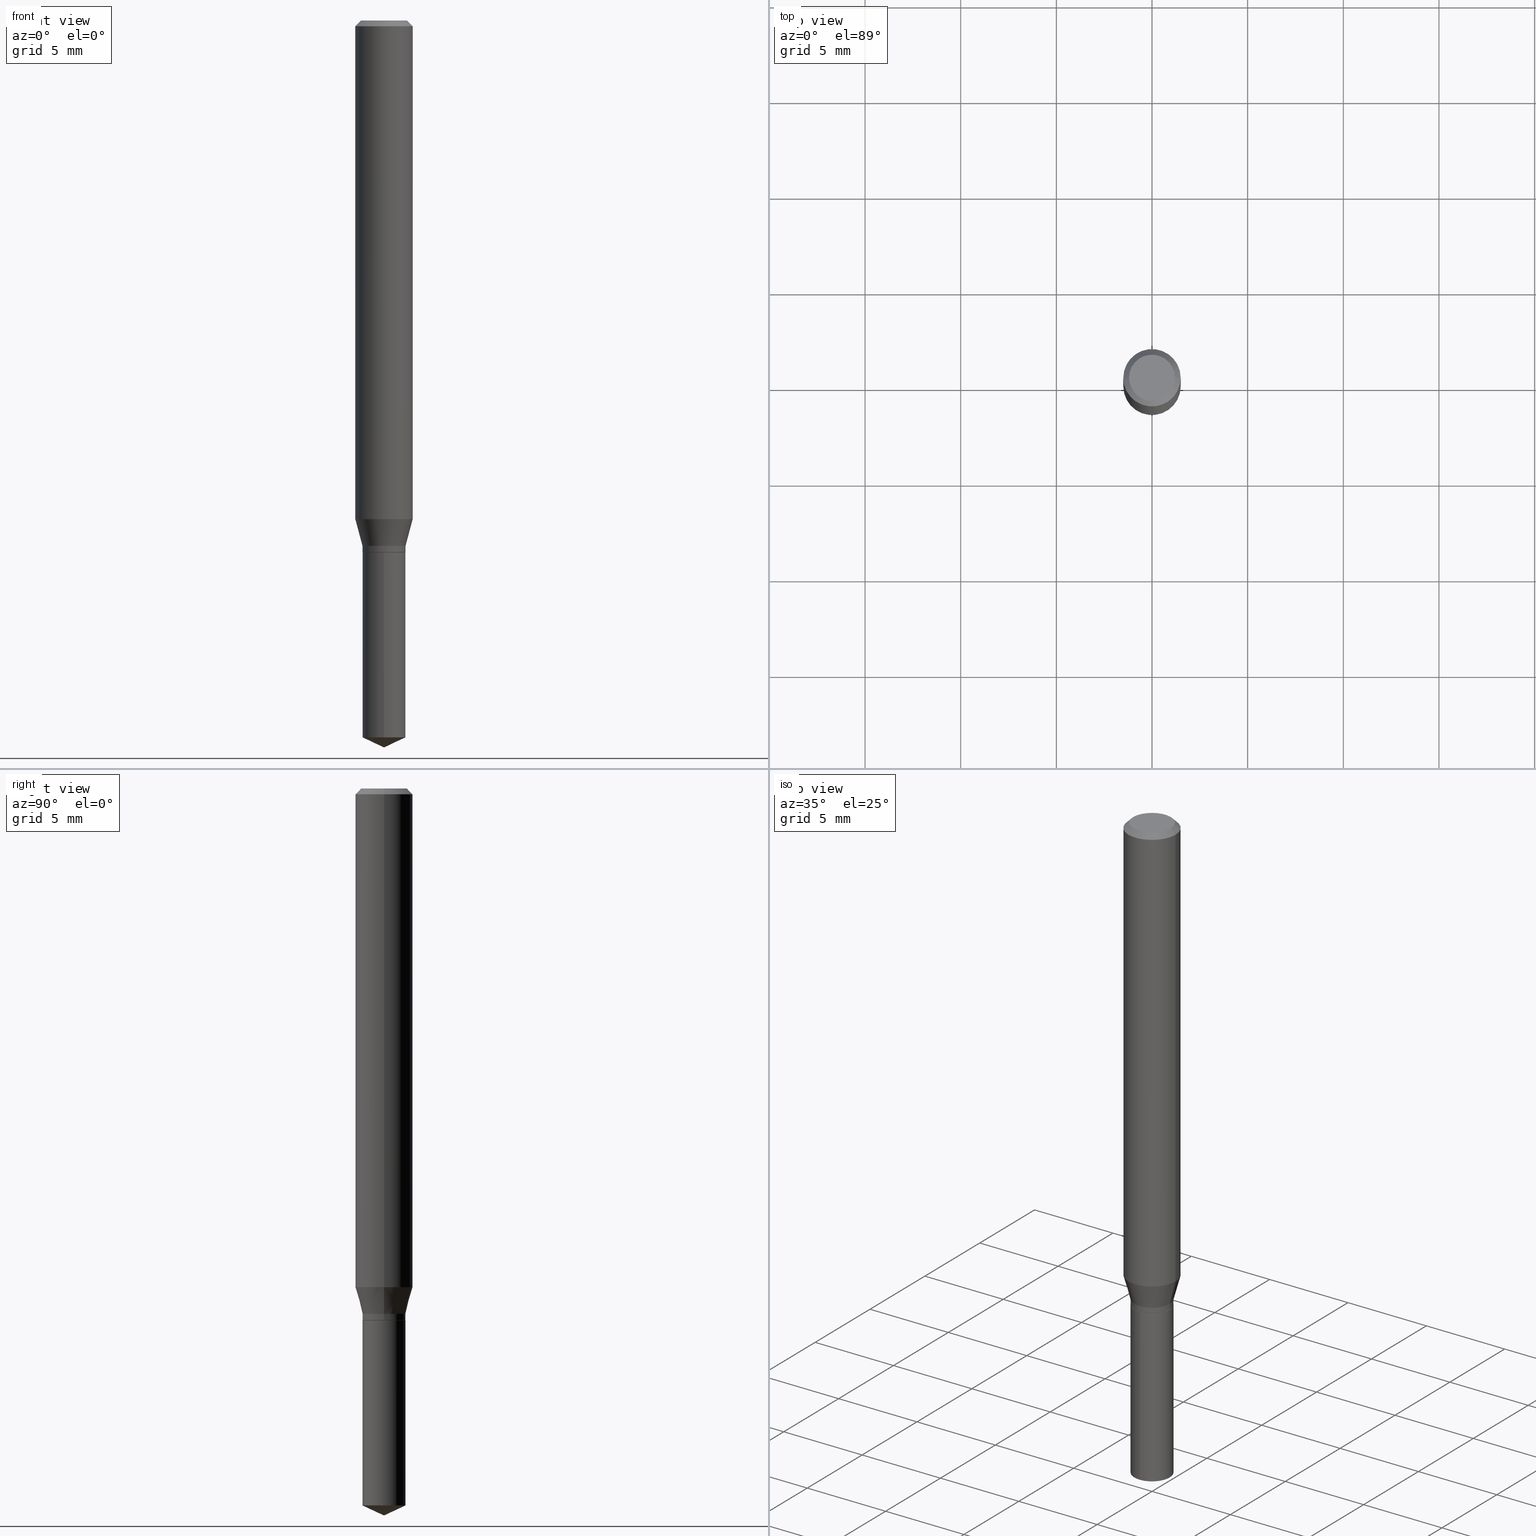
[diagram: canonical four-view strip — front | top / right | iso, engineering-drawing reading convention]
A machine part, canonical four-view strip (front | top / right | iso — engineering-drawing reading convention). The complete STEP part file that produces these views, byte-faithful:
ISO-10303-21;
HEADER;
FILE_DESCRIPTION (( 'STEP AP203' ),
    '1' );
FILE_NAME ('08379.STEP',
    '2024-04-24T14:44:27',
    ( '' ),
    ( '' ),
    'SwSTEP 2.0',
    'SolidWorks 2023',
    '' );
FILE_SCHEMA (( 'CONFIG_CONTROL_DESIGN' ));
ENDSEC;

DATA;
#1 = FACE_OUTER_BOUND ( 'NONE', #296, .T. ) ;
#2 = DIRECTION ( 'NONE',  ( -2.445468806185136597E-29, 3.491481338843145583E-15, 1.000000000000000000 ) ) ;
#3 = AXIS2_PLACEMENT_3D ( 'NONE', #24, #130, #165 ) ;
#4 = DATE_AND_TIME ( #259, #344 ) ;
#5 = FACE_OUTER_BOUND ( 'NONE', #255, .T. ) ;
#6 = LINE ( 'NONE', #457, #258 ) ;
#7 = CARTESIAN_POINT ( 'NONE',  ( 2.676565608369631794E-29, -3.821426325363822773E-15, -1.094499999999999806 ) ) ;
#8 = CARTESIAN_POINT ( 'NONE',  ( -9.261532836068574158E-28, 1.322424553111868898E-13, 37.87397874015748300 ) ) ;
#9 = LINE ( 'NONE', #275, #81 ) ;
#10 = APPROVAL ( #472, 'UNSPECIFIED' ) ;
#11 = AXIS2_PLACEMENT_3D ( 'NONE', #8, #163, #251 ) ;
#12 = CARTESIAN_POINT ( 'NONE',  ( 2.509423319210504221E-29, -3.582791433741148906E-15, -1.026152250588358461 ) ) ;
#13 = ORIENTED_EDGE ( 'NONE', *, *, #76, .T. ) ;
#14 = APPLICATION_CONTEXT ( 'configuration controlled 3d designs of mechanical parts and assemblies' ) ;
#15 = CARTESIAN_POINT ( 'NONE',  ( 2.644040873247369889E-29, -3.774989623557209201E-15, -1.081199999999999939 ) ) ;
#16 = ORIENTED_EDGE ( 'NONE', *, *, #330, .F. ) ;
#17 = FACE_OUTER_BOUND ( 'NONE', #449, .T. ) ;
#18 = EDGE_CURVE ( 'NONE', #184, #265, #28, .T. ) ;
#19 = ORIENTED_EDGE ( 'NONE', *, *, #172, .T. ) ;
#20 = CARTESIAN_POINT ( 'NONE',  ( 3.147704319417604663E-16, 0.04429999999999485738, -1.475442570743733750 ) ) ;
#21 = AXIS2_PLACEMENT_3D ( 'NONE', #7, #201, #350 ) ;
#22 = EDGE_LOOP ( 'NONE', ( #16, #218, #379 ) ) ;
#23 = ORIENTED_EDGE ( 'NONE', *, *, #273, .T. ) ;
#24 = CARTESIAN_POINT ( 'NONE',  ( 2.676565608369631794E-29, -3.821426325363822773E-15, -1.094499999999999806 ) ) ;
#25 = ORIENTED_EDGE ( 'NONE', *, *, #439, .T. ) ;
#26 = ORIENTED_EDGE ( 'NONE', *, *, #213, .T. ) ;
#27 =( CONVERSION_BASED_UNIT ( 'INCH', #346 ) LENGTH_UNIT ( ) NAMED_UNIT ( #405 ) );
#28 = LINE ( 'NONE', #303, #96 ) ;
#29 = EDGE_CURVE ( 'NONE', #131, #184, #221, .T. ) ;
#30 = DIRECTION ( 'NONE',  ( 1.000000000000000000, 0.000000000000000000, 0.000000000000000000 ) ) ;
#31 = CARTESIAN_POINT ( 'NONE',  ( 2.676565608369631794E-29, -3.821426325363822773E-15, -1.094499999999999806 ) ) ;
#32 = PERSON ( 'UNSPECIFIED', 'UNSPECIFIED', 'UNSPECIFIED', ('UNSPECIFIED'), ('UNSPECIFIED'), ('UNSPECIFIED') ) ;
#33 = AXIS2_PLACEMENT_3D ( 'NONE', #363, #168, #318 ) ;
#34 = VERTEX_POINT ( 'NONE', #149 ) ;
#35 = ADVANCED_FACE ( 'NONE', ( #302 ), #332, .T. ) ;
#36 = CYLINDRICAL_SURFACE ( 'NONE', #391, 0.04429999999999999910 ) ;
#37 = ORIENTED_EDGE ( 'NONE', *, *, #378, .F. ) ;
#38 = EDGE_CURVE ( 'NONE', #297, #248, #490, .T. ) ;
#39 = FACE_OUTER_BOUND ( 'NONE', #479, .T. ) ;
#40 = CIRCLE ( 'NONE', #245, 0.04429999999999997828 ) ;
#41 = APPROVAL_DATE_TIME ( #382, #167 ) ;
#42 = DIRECTION ( 'NONE',  ( -2.445358326776455790E-29, 3.491639551644474585E-15, 1.000000000000000000 ) ) ;
#43 = DIRECTION ( 'NONE',  ( -1.000000000000000000, 6.982962677686265922E-15, -4.876176775795935793E-29 ) ) ;
#44 = DIRECTION ( 'NONE',  ( -2.445468806185136597E-29, 3.491481338843145583E-15, 1.000000000000000000 ) ) ;
#45 = COORDINATED_UNIVERSAL_TIME_OFFSET ( 5, 0, .BEHIND. ) ;
#46 = EDGE_CURVE ( 'NONE', #366, #300, #117, .T. ) ;
#47 = DIRECTION ( 'NONE',  ( -2.445358326776455510E-29, 3.491639551644474585E-15, 1.000000000000000000 ) ) ;
#48 = VECTOR ( 'NONE', #129, 39.37007874015748143 ) ;
#49 = APPROVAL_PERSON_ORGANIZATION ( #460, #390, #107 ) ;
#50 = CARTESIAN_POINT ( 'NONE',  ( -0.05904999999999999832, -1.392437428710102838E-15, -0.01181000000000007738 ) ) ;
#51 = CARTESIAN_POINT ( 'NONE',  ( -3.093452466214748031E-16, -0.04430000000000382243, -1.094499999999999806 ) ) ;
#52 = CARTESIAN_POINT ( 'NONE',  ( -0.04429999999999997135, 3.147704319417241787E-16, -2.179088244982921732E-30 ) ) ;
#53 = ORIENTED_EDGE ( 'NONE', *, *, #378, .T. ) ;
#54 = CARTESIAN_POINT ( 'NONE',  ( -0.04379999999999999866, -3.510208607100898458E-15, -1.094499999999999806 ) ) ;
#55 = LOCAL_TIME ( 10, 44, 27.00000000000000000, #217 ) ;
#56 = ORIENTED_EDGE ( 'NONE', *, *, #80, .F. ) ;
#57 = PRODUCT ( '08379', '08379', '', ( #372 ) ) ;
#58 = LINE ( 'NONE', #139, #430 ) ;
#59 = ORIENTED_EDGE ( 'NONE', *, *, #213, .F. ) ;
#60 = FACE_OUTER_BOUND ( 'NONE', #471, .T. ) ;
#61 = EDGE_LOOP ( 'NONE', ( #37, #59 ) ) ;
#62 = AXIS2_PLACEMENT_3D ( 'NONE', #73, #155, #77 ) ;
#63 = FACE_OUTER_BOUND ( 'NONE', #220, .T. ) ;
#64 = CIRCLE ( 'NONE', #305, 0.04724000000000000421 ) ;
#65 = EDGE_LOOP ( 'NONE', ( #338, #19, #23, #357 ) ) ;
#66 = ORGANIZATION ( 'UNSPECIFIED', 'UNSPECIFIED', '' ) ;
#67 = ADVANCED_FACE ( 'NONE', ( #1 ), #36, .T. ) ;
#68 = PERSON_AND_ORGANIZATION_ROLE ( 'design_supplier' ) ;
#69 = DIRECTION ( 'NONE',  ( 1.000000000000000000, -6.982962677686265133E-15, 0.000000000000000000 ) ) ;
#70 = CARTESIAN_POINT ( 'NONE',  ( -0.05904999999999999832, 3.711095515056362054E-16, -0.01181000000000007738 ) ) ;
#71 = ORIENTED_EDGE ( 'NONE', *, *, #224, .F. ) ;
#72 = ORIENTED_EDGE ( 'NONE', *, *, #46, .F. ) ;
#73 = CARTESIAN_POINT ( 'NONE',  ( 2.676565608369631794E-29, -3.821426325363822773E-15, -1.094499999999999806 ) ) ;
#74 = AXIS2_PLACEMENT_3D ( 'NONE', #414, #419, #262 ) ;
#75 = CIRCLE ( 'NONE', #351, 0.04429999999999999910 ) ;
#76 = EDGE_CURVE ( 'NONE', #402, #131, #174, .T. ) ;
#77 = DIRECTION ( 'NONE',  ( -6.982962677686265133E-15, -1.000000000000000000, 3.083349879982238325E-15 ) ) ;
#78 = DIRECTION ( 'NONE',  ( -2.445468806185136597E-29, 3.491481338843145583E-15, 1.000000000000000000 ) ) ;
#79 = DIRECTION ( 'NONE',  ( -2.438088387897960049E-29, 3.491481338843145188E-15, 1.000000000000000000 ) ) ;
#80 = EDGE_CURVE ( 'NONE', #248, #265, #279, .T. ) ;
#81 = VECTOR ( 'NONE', #42, 39.37007874015748143 ) ;
#82 = PERSON_AND_ORGANIZATION ( #32, #66 ) ;
#83 = LINE ( 'NONE', #51, #358 ) ;
#84 = ADVANCED_FACE ( 'NONE', ( #417 ), #114, .T. ) ;
#85 = DIRECTION ( 'NONE',  ( -2.445358326776455510E-29, 3.491639551644474585E-15, 1.000000000000000000 ) ) ;
#86 = DIRECTION ( 'NONE',  ( 1.000000000000000000, -6.982962677686269077E-15, 0.000000000000000000 ) ) ;
#87 = ADVANCED_FACE ( 'NONE', ( #39 ), #381, .T. ) ;
#88 = DIRECTION ( 'NONE',  ( 1.000000000000000000, -6.982962677686266711E-15, 4.876176775795936353E-29 ) ) ;
#89 = CIRCLE ( 'NONE', #3, 0.04429999999999999910 ) ;
#90 = CC_DESIGN_DATE_AND_TIME_ASSIGNMENT ( #408, #476, ( #359 ) ) ;
#91 = DIRECTION ( 'NONE',  ( -2.445468806185136597E-29, 3.491481338843145583E-15, 1.000000000000000000 ) ) ;
#92 = CARTESIAN_POINT ( 'NONE',  ( -3.093452466214655833E-16, -0.04430000000000515470, -1.475442570743733306 ) ) ;
#93 = DESIGN_CONTEXT ( 'detailed design', #223, 'design' ) ;
#94 = CARTESIAN_POINT ( 'NONE',  ( 0.04724000000000000421, -3.852183633974369838E-16, -3.380025165621689721E-19 ) ) ;
#95 = ORIENTED_EDGE ( 'NONE', *, *, #489, .F. ) ;
#96 = VECTOR ( 'NONE', #118, 39.37007874015748143 ) ;
#97 = CIRCLE ( 'NONE', #145, 0.04379999999999999866 ) ;
#98 = DIRECTION ( 'NONE',  ( 1.000000000000000000, -6.982962677686266711E-15, 4.876185090822587894E-29 ) ) ;
#99 = PERSON_AND_ORGANIZATION ( #32, #66 ) ;
#100 = PRODUCT_DEFINITION ( 'UNKNOWN', '', #128, #93 ) ;
#101 = DIRECTION ( 'NONE',  ( 2.445468806185136597E-29, -3.491481338843145583E-15, -1.000000000000000000 ) ) ;
#102 = ORIENTED_EDGE ( 'NONE', *, *, #197, .T. ) ;
#103 = VERTEX_POINT ( 'NONE', #339 ) ;
#104 = DIRECTION ( 'NONE',  ( -2.445468806185136597E-29, 3.491481338843145583E-15, 1.000000000000000000 ) ) ;
#105 = EDGE_LOOP ( 'NONE', ( #13, #329, #208, #204 ) ) ;
#106 = AXIS2_PLACEMENT_3D ( 'NONE', #394, #44, #427 ) ;
#107 = APPROVAL_ROLE ( '' ) ;
#108 = CC_DESIGN_PERSON_AND_ORGANIZATION_ASSIGNMENT ( #82, #68, ( #128 ) ) ;
#109 = VERTEX_POINT ( 'NONE', #410 ) ;
#110 = CALENDAR_DATE ( 2024, 24, 4 ) ;
#111 = CARTESIAN_POINT ( 'NONE',  ( 0.000000000000000000, 0.000000000000000000, 0.000000000000000000 ) ) ;
#112 = CARTESIAN_POINT ( 'NONE',  ( 2.644040873247369889E-29, -3.774989623557209201E-15, -1.081199999999999939 ) ) ;
#113 = CALENDAR_DATE ( 2024, 24, 4 ) ;
#114 = CYLINDRICAL_SURFACE ( 'NONE', #62, 0.04429999999999999910 ) ;
#115 = EDGE_CURVE ( 'NONE', #325, #184, #342, .T. ) ;
#116 = ORIENTED_EDGE ( 'NONE', *, *, #352, .T. ) ;
#117 = LINE ( 'NONE', #487, #310 ) ;
#118 = DIRECTION ( 'NONE',  ( -2.445468806185136877E-29, 3.491481338843145188E-15, 1.000000000000000000 ) ) ;
#119 = PERSON_AND_ORGANIZATION_ROLE ( 'design_owner' ) ;
#120 = DIRECTION ( 'NONE',  ( 0.7071067811865112684, -2.468850131081876830E-15, 0.7071067811865837660 ) ) ;
#121 = EDGE_CURVE ( 'NONE', #325, #248, #230, .T. ) ;
#122 = CONICAL_SURFACE ( 'NONE', #160, 0.05904999999999999832, 0.7853981633974449483 ) ;
#123 = CARTESIAN_POINT ( 'NONE',  ( -0.04379999999999999866, -3.507559379926787651E-15, -1.094499999999999806 ) ) ;
#124 = DIRECTION ( 'NONE',  ( -2.445468806185136597E-29, 3.491481338843145583E-15, 1.000000000000000000 ) ) ;
#125 = CYLINDRICAL_SURFACE ( 'NONE', #205, 0.04429999999999997135 ) ;
#126 = AXIS2_PLACEMENT_3D ( 'NONE', #267, #78, #69 ) ;
#127 = CIRCLE ( 'NONE', #424, 0.04724000000000000421 ) ;
#128 = PRODUCT_DEFINITION_FORMATION_WITH_SPECIFIED_SOURCE ( 'ANY', '', #57, .NOT_KNOWN. ) ;
#129 = DIRECTION ( 'NONE',  ( -2.445468806185136877E-29, 3.491481338843145188E-15, 1.000000000000000000 ) ) ;
#130 = DIRECTION ( 'NONE',  ( -2.445358326776455510E-29, 3.491639551644474585E-15, 1.000000000000000000 ) ) ;
#131 = VERTEX_POINT ( 'NONE', #392 ) ;
#132 = CALENDAR_DATE ( 2024, 24, 4 ) ;
#133 = DIRECTION ( 'NONE',  ( 0.2588190451025207950, 1.565188264969625912E-15, 0.9659258262890682012 ) ) ;
#134 = EDGE_CURVE ( 'NONE', #265, #248, #383, .T. ) ;
#135 = ORIENTED_EDGE ( 'NONE', *, *, #481, .T. ) ;
#136 = CIRCLE ( 'NONE', #438, 0.04429999999999997828 ) ;
#137 = CARTESIAN_POINT ( 'NONE',  ( 2.676565608369631794E-29, -3.821426325363822773E-15, -1.094499999999999806 ) ) ;
#138 = VERTEX_POINT ( 'NONE', #123 ) ;
#139 = CARTESIAN_POINT ( 'NONE',  ( 3.658744552762151624E-29, -5.223495605393188568E-15, -1.496099999999999985 ) ) ;
#140 = EDGE_LOOP ( 'NONE', ( #445, #178, #102, #412 ) ) ;
#141 = ORIENTED_EDGE ( 'NONE', *, *, #330, .T. ) ;
#142 = EDGE_LOOP ( 'NONE', ( #441, #370 ) ) ;
#143 = COORDINATED_UNIVERSAL_TIME_OFFSET ( 5, 0, .BEHIND. ) ;
#144 = DIRECTION ( 'NONE',  ( 0.000000000000000000, 0.000000000000000000, 1.000000000000000000 ) ) ;
#145 = AXIS2_PLACEMENT_3D ( 'NONE', #431, #91, #86 ) ;
#146 = DIRECTION ( 'NONE',  ( -6.982962677686265133E-15, -1.000000000000000000, 3.083349879982238325E-15 ) ) ;
#147 = APPROVAL_ROLE ( '' ) ;
#148 = MANIFOLD_SOLID_BREP ( 'Body-Move/Copy2[2]', #407 ) ;
#149 = CARTESIAN_POINT ( 'NONE',  ( -0.04724000000000000421, 3.504923541997677355E-16, -3.380025165670481712E-19 ) ) ;
#150 = ADVANCED_FACE ( 'NONE', ( #465 ), #125, .T. ) ;
#151 = ORIENTED_EDGE ( 'NONE', *, *, #80, .T. ) ;
#152 = CARTESIAN_POINT ( 'NONE',  ( 0.05904999999999999832, -4.463468013801467941E-16, -0.01181000000000007738 ) ) ;
#153 = VECTOR ( 'NONE', #314, 39.37007874015748143 ) ;
#154 = ADVANCED_FACE ( 'NONE', ( #161 ), #355, .F. ) ;
#155 = DIRECTION ( 'NONE',  ( -2.445358326776455510E-29, 3.491639551644474585E-15, 1.000000000000000000 ) ) ;
#156 = PERSON_AND_ORGANIZATION ( #32, #66 ) ;
#157 = ADVANCED_FACE ( 'NONE', ( #5 ), #236, .T. ) ;
#158 = CARTESIAN_POINT ( 'NONE',  ( 0.000000000000000000, 0.000000000000000000, 0.000000000000000000 ) ) ;
#159 = CARTESIAN_POINT ( 'NONE',  ( 0.04429999999999997135, -3.093452466215014271E-16, 2.160146311677598332E-30 ) ) ;
#160 = AXIS2_PLACEMENT_3D ( 'NONE', #401, #101, #482 ) ;
#161 = FACE_OUTER_BOUND ( 'NONE', #61, .T. ) ;
#162 = EDGE_CURVE ( 'NONE', #437, #435, #9, .T. ) ;
#163 = DIRECTION ( 'NONE',  ( -2.445358326776455510E-29, 3.491639551644474585E-15, 1.000000000000000000 ) ) ;
#164 = CARTESIAN_POINT ( 'NONE',  ( -9.261532836068574158E-28, 1.322424553111868898E-13, 37.87397874015748300 ) ) ;
#165 = DIRECTION ( 'NONE',  ( -6.982962677686265133E-15, -1.000000000000000000, 3.083349879982238325E-15 ) ) ;
#166 = VERTEX_POINT ( 'NONE', #308 ) ;
#167 = APPROVAL ( #335, 'UNSPECIFIED' ) ;
#168 = DIRECTION ( 'NONE',  ( -2.445468806185136597E-29, 3.491481338843145583E-15, 1.000000000000000000 ) ) ;
#169 = ORIENTED_EDGE ( 'NONE', *, *, #273, .F. ) ;
#170 = DIRECTION ( 'NONE',  ( 2.445468806185136597E-29, -3.491481338843145583E-15, -1.000000000000000000 ) ) ;
#171 = ORIENTED_EDGE ( 'NONE', *, *, #29, .F. ) ;
#172 = EDGE_CURVE ( 'NONE', #437, #300, #299, .T. ) ;
#173 = APPROVAL_ROLE ( '' ) ;
#174 = CIRCLE ( 'NONE', #74, 0.04429999999999997135 ) ;
#175 = CARTESIAN_POINT ( 'NONE',  ( 8.265746106709734507E-48, -1.180129479067563789E-33, -3.380025165646692144E-19 ) ) ;
#176 = ORIENTED_EDGE ( 'NONE', *, *, #250, .F. ) ;
#177 = DIRECTION ( 'NONE',  ( 1.000000000000000000, -6.982962677686266711E-15, 4.876176775795936353E-29 ) ) ;
#178 = ORIENTED_EDGE ( 'NONE', *, *, #263, .T. ) ;
#179 = DIRECTION ( 'NONE',  ( -2.445358326776455510E-29, 3.491639551644474585E-15, 1.000000000000000000 ) ) ;
#180 = DIRECTION ( 'NONE',  ( 1.000000000000000000, -6.982962677686262766E-15, 0.000000000000000000 ) ) ;
#181 = VECTOR ( 'NONE', #189, 39.37007874015748854 ) ;
#182 = DATE_AND_TIME ( #113, #416 ) ;
#183 = AXIS2_PLACEMENT_3D ( 'NONE', #15, #282, #432 ) ;
#184 = VERTEX_POINT ( 'NONE', #195 ) ;
#185 = APPROVAL_PERSON_ORGANIZATION ( #99, #10, #173 ) ;
#186 = ORIENTED_EDGE ( 'NONE', *, *, #469, .F. ) ;
#187 = ADVANCED_FACE ( 'NONE', ( #349 ), #453, .T. ) ;
#188 = DIRECTION ( 'NONE',  ( 1.000000000000000000, -6.982962677686266711E-15, 4.876176775795936353E-29 ) ) ;
#189 = DIRECTION ( 'NONE',  ( -0.2588190451025207950, 5.211531920934546309E-15, 0.9659258262890682012 ) ) ;
#190 = ORIENTED_EDGE ( 'NONE', *, *, #38, .T. ) ;
#191 = CC_DESIGN_DATE_AND_TIME_ASSIGNMENT ( #182, #269, ( #100 ) ) ;
#192 = LINE ( 'NONE', #70, #367 ) ;
#193 = DIRECTION ( 'NONE',  ( -2.445468806185136877E-29, 3.491481338843145188E-15, 1.000000000000000000 ) ) ;
#194 = CARTESIAN_POINT ( 'NONE',  ( 3.608106695761450652E-29, -5.151540472277766445E-15, -1.475442570743733528 ) ) ;
#195 = CARTESIAN_POINT ( 'NONE',  ( -0.05905000000000013016, -3.163215948274808624E-15, -1.026152250588358461 ) ) ;
#196 = PERSON_AND_ORGANIZATION ( #32, #66 ) ;
#197 = EDGE_CURVE ( 'NONE', #166, #402, #313, .T. ) ;
#198 = DIRECTION ( 'NONE',  ( -6.982962677686265133E-15, -1.000000000000000000, 6.166699759964476650E-15 ) ) ;
#199 = AXIS2_PLACEMENT_3D ( 'NONE', #194, #179, #274 ) ;
#200 = APPROVAL_PERSON_ORGANIZATION ( #196, #167, #147 ) ;
#201 = DIRECTION ( 'NONE',  ( -2.445468806185136597E-29, 3.491481338843145583E-15, 1.000000000000000000 ) ) ;
#202 = DIRECTION ( 'NONE',  ( -2.445358326776455790E-29, 3.491639551644474585E-15, 1.000000000000000000 ) ) ;
#203 = CARTESIAN_POINT ( 'NONE',  ( 3.658500592690254185E-29, -5.223841933215297403E-15, -1.496099999999999985 ) ) ;
#204 = ORIENTED_EDGE ( 'NONE', *, *, #418, .F. ) ;
#205 = AXIS2_PLACEMENT_3D ( 'NONE', #464, #124, #387 ) ;
#206 = AXIS2_PLACEMENT_3D ( 'NONE', #278, #347, #198 ) ;
#207 = CARTESIAN_POINT ( 'NONE',  ( 0.05905000000000013016, -3.995135379858523826E-15, -1.026152250588358461 ) ) ;
#208 = ORIENTED_EDGE ( 'NONE', *, *, #115, .F. ) ;
#209 = SECURITY_CLASSIFICATION_LEVEL ( 'unclassified' ) ;
#210 = DIRECTION ( 'NONE',  ( -0.7071067811865112684, 7.493145998870223209E-15, 0.7071067811865837660 ) ) ;
#211 = EDGE_LOOP ( 'NONE', ( #72, #141, #95 ) ) ;
#212 = DIRECTION ( 'NONE',  ( 6.982962677686265922E-15, 1.000000000000000000, -3.491639551644474585E-15 ) ) ;
#213 = EDGE_CURVE ( 'NONE', #138, #103, #97, .T. ) ;
#214 = CONICAL_SURFACE ( 'NONE', #11, 84.42940631927434936, 1.134464013796316006 ) ;
#215 = CARTESIAN_POINT ( 'NONE',  ( 0.04429999999999997135, -4.084334870178709888E-15, -1.081199999999999939 ) ) ;
#216 = VERTEX_POINT ( 'NONE', #268 ) ;
#217 = COORDINATED_UNIVERSAL_TIME_OFFSET ( 5, 0, .BEHIND. ) ;
#218 = ORIENTED_EDGE ( 'NONE', *, *, #46, .T. ) ;
#219 =( LENGTH_UNIT ( ) NAMED_UNIT ( * ) SI_UNIT ( $, .METRE. ) );
#220 = EDGE_LOOP ( 'NONE', ( #171, #252, #337, #483 ) ) ;
#221 = LINE ( 'NONE', #331, #181 ) ;
#222 = ORIENTED_EDGE ( 'NONE', *, *, #288, .F. ) ;
#223 = APPLICATION_CONTEXT ( 'configuration controlled 3d designs of mechanical parts and assemblies' ) ;
#224 = EDGE_CURVE ( 'NONE', #103, #166, #6, .T. ) ;
#225 = AXIS2_PLACEMENT_3D ( 'NONE', #228, #455, #188 ) ;
#226 = DIRECTION ( 'NONE',  ( -6.982962677686265133E-15, -1.000000000000000000, 3.083349879982238325E-15 ) ) ;
#227 = AXIS2_PLACEMENT_3D ( 'NONE', #286, #170, #436 ) ;
#228 = CARTESIAN_POINT ( 'NONE',  ( 0.000000000000000000, 0.000000000000000000, 0.000000000000000000 ) ) ;
#229 = ORIENTED_EDGE ( 'NONE', *, *, #76, .F. ) ;
#230 = LINE ( 'NONE', #345, #257 ) ;
#231 = DIRECTION ( 'NONE',  ( -2.445468806185136597E-29, 3.491481338843145583E-15, 1.000000000000000000 ) ) ;
#232 = CIRCLE ( 'NONE', #333, 0.04429999999999997135 ) ;
#233 = DIRECTION ( 'NONE',  ( 1.000000000000000000, -6.982962677686265922E-15, 4.876176775795935793E-29 ) ) ;
#234 =( NAMED_UNIT ( * ) SI_UNIT ( $, .STERADIAN. ) SOLID_ANGLE_UNIT ( ) );
#235 = CARTESIAN_POINT ( 'NONE',  ( 2.675342873966538993E-29, -3.819680584694400481E-15, -1.093999999999999861 ) ) ;
#236 = CYLINDRICAL_SURFACE ( 'NONE', #317, 0.04429999999999997135 ) ;
#237 = AXIS2_PLACEMENT_3D ( 'NONE', #112, #2, #180 ) ;
#238 = CIRCLE ( 'NONE', #461, 0.05905000000000013016 ) ;
#239 = VECTOR ( 'NONE', #210, 39.37007874015748143 ) ;
#240 = DIRECTION ( 'NONE',  ( 1.000000000000000000, -6.982962677686272233E-15, 0.000000000000000000 ) ) ;
#241 = DIRECTION ( 'NONE',  ( -2.445468806185136597E-29, 3.491481338843145583E-15, 1.000000000000000000 ) ) ;
#242 = DIRECTION ( 'NONE',  ( -2.445468806185136597E-29, 3.491481338843145583E-15, 1.000000000000000000 ) ) ;
#243 = EDGE_LOOP ( 'NONE', ( #53, #116, #176, #71 ) ) ;
#244 = VECTOR ( 'NONE', #452, 39.37007874015748143 ) ;
#245 = AXIS2_PLACEMENT_3D ( 'NONE', #235, #231, #277 ) ;
#246 = CC_DESIGN_SECURITY_CLASSIFICATION ( #359, ( #128 ) ) ;
#247 = DIRECTION ( 'NONE',  ( 1.000000000000000000, -6.982962677686265133E-15, 0.000000000000000000 ) ) ;
#248 = VERTEX_POINT ( 'NONE', #270 ) ;
#249 = SHAPE_DEFINITION_REPRESENTATION ( #474, #458 ) ;
#250 = EDGE_CURVE ( 'NONE', #166, #109, #40, .T. ) ;
#251 = DIRECTION ( 'NONE',  ( -6.982962677686266711E-15, -1.000000000000000000, 3.520397390770453475E-15 ) ) ;
#252 = ORIENTED_EDGE ( 'NONE', *, *, #276, .T. ) ;
#253 = ORIENTED_EDGE ( 'NONE', *, *, #121, .F. ) ;
#254 = PLANE ( 'NONE',  #290 ) ;
#255 = EDGE_LOOP ( 'NONE', ( #319, #375, #229, #486 ) ) ;
#256 = PERSON_AND_ORGANIZATION_ROLE ( 'classification_officer' ) ;
#257 = VECTOR ( 'NONE', #193, 39.37007874015748143 ) ;
#258 = VECTOR ( 'NONE', #120, 39.37007874015748143 ) ;
#259 = CALENDAR_DATE ( 2024, 24, 4 ) ;
#260 = ORIENTED_EDGE ( 'NONE', *, *, #18, .F. ) ;
#261 = APPROVAL_DATE_TIME ( #4, #390 ) ;
#262 = DIRECTION ( 'NONE',  ( 1.000000000000000000, -6.982962677686262766E-15, 0.000000000000000000 ) ) ;
#263 = EDGE_CURVE ( 'NONE', #109, #166, #136, .T. ) ;
#264 = COORDINATED_UNIVERSAL_TIME_OFFSET ( 5, 0, .BEHIND. ) ;
#265 = VERTEX_POINT ( 'NONE', #50 ) ;
#266 = DIRECTION ( 'NONE',  ( -2.445468806185136597E-29, 3.491481338843145583E-15, 1.000000000000000000 ) ) ;
#267 = CARTESIAN_POINT ( 'NONE',  ( 2.509423319210504221E-29, -3.582791433741148906E-15, -1.026152250588358461 ) ) ;
#268 = CARTESIAN_POINT ( 'NONE',  ( -3.093452466214748031E-16, -0.04430000000000382243, -1.094499999999999806 ) ) ;
#269 = DATE_TIME_ROLE ( 'creation_date' ) ;
#270 = CARTESIAN_POINT ( 'NONE',  ( 0.05904999999999999832, -4.535783407291118600E-16, -0.01181000000000007738 ) ) ;
#271 = CONICAL_SURFACE ( 'NONE', #454, 0.04379999999999999866, 0.7853981633973970977 ) ;
#272 = LOCAL_TIME ( 10, 44, 27.00000000000000000, #264 ) ;
#273 = EDGE_CURVE ( 'NONE', #300, #216, #83, .T. ) ;
#274 = DIRECTION ( 'NONE',  ( -6.982962677686265133E-15, -1.000000000000000000, 6.166699759964476650E-15 ) ) ;
#275 = CARTESIAN_POINT ( 'NONE',  ( 3.147704319417510493E-16, 0.04429999999999617577, -1.094500000000000028 ) ) ;
#276 = EDGE_CURVE ( 'NONE', #131, #402, #232, .T. ) ;
#277 = DIRECTION ( 'NONE',  ( 1.000000000000000000, -6.982962677686272233E-15, 0.000000000000000000 ) ) ;
#278 = CARTESIAN_POINT ( 'NONE',  ( 3.608106695761450652E-29, -5.151540472277766445E-15, -1.475442570743733528 ) ) ;
#279 = CIRCLE ( 'NONE', #298, 0.05904999999999999832 ) ;
#280 = VECTOR ( 'NONE', #133, 39.37007874015748854 ) ;
#281 = ADVANCED_FACE ( 'NONE', ( #420 ), #377, .T. ) ;
#282 = DIRECTION ( 'NONE',  ( -2.445468806185136597E-29, 3.491481338843145583E-15, 1.000000000000000000 ) ) ;
#283 = CARTESIAN_POINT ( 'NONE',  ( 2.676565608369631794E-29, -3.821426325363822773E-15, -1.094499999999999806 ) ) ;
#284 = ORIENTED_EDGE ( 'NONE', *, *, #224, .T. ) ;
#285 = ADVANCED_FACE ( 'NONE', ( #353 ), #214, .T. ) ;
#286 = CARTESIAN_POINT ( 'NONE',  ( 2.888098660104665518E-31, -4.123439461173782112E-17, -0.01181000000000007738 ) ) ;
#287 = ORIENTED_EDGE ( 'NONE', *, *, #38, .F. ) ;
#288 = EDGE_CURVE ( 'NONE', #297, #34, #127, .T. ) ;
#289 = CLOSED_SHELL ( 'NONE', ( #67, #281, #285, #84, #434 ) ) ;
#290 = AXIS2_PLACEMENT_3D ( 'NONE', #369, #295, #43 ) ;
#291 = DIRECTION ( 'NONE',  ( 2.445358326776454949E-29, -3.491639551644474585E-15, -1.000000000000000000 ) ) ;
#292 = ORIENTED_EDGE ( 'NONE', *, *, #134, .F. ) ;
#293 = LINE ( 'NONE', #52, #48 ) ;
#294 = ORIENTED_EDGE ( 'NONE', *, *, #439, .F. ) ;
#295 = DIRECTION ( 'NONE',  ( 2.438088387897960049E-29, -3.491481338843145188E-15, -1.000000000000000000 ) ) ;
#296 = EDGE_LOOP ( 'NONE', ( #307, #327, #186, #169 ) ) ;
#297 = VERTEX_POINT ( 'NONE', #94 ) ;
#298 = AXIS2_PLACEMENT_3D ( 'NONE', #380, #266, #306 ) ;
#299 = CIRCLE ( 'NONE', #206, 0.04429999999999999910 ) ;
#300 = VERTEX_POINT ( 'NONE', #92 ) ;
#301 = CARTESIAN_POINT ( 'NONE',  ( 2.676565608369631794E-29, -3.821426325363822773E-15, -1.094499999999999806 ) ) ;
#302 = FACE_OUTER_BOUND ( 'NONE', #105, .T. ) ;
#303 = CARTESIAN_POINT ( 'NONE',  ( -0.05905000000000006771, 4.195754854663396409E-16, -2.904631170795525045E-30 ) ) ;
#304 = CC_DESIGN_PERSON_AND_ORGANIZATION_ASSIGNMENT ( #323, #256, ( #359 ) ) ;
#305 = AXIS2_PLACEMENT_3D ( 'NONE', #175, #104, #326 ) ;
#306 = DIRECTION ( 'NONE',  ( 1.000000000000000000, -6.982962677686266711E-15, 0.000000000000000000 ) ) ;
#307 = ORIENTED_EDGE ( 'NONE', *, *, #489, .T. ) ;
#308 = CARTESIAN_POINT ( 'NONE',  ( 0.04429999999999997828, -4.129025831315902746E-15, -1.093999999999999861 ) ) ;
#309 = COORDINATED_UNIVERSAL_TIME_OFFSET ( 5, 0, .BEHIND. ) ;
#310 = VECTOR ( 'NONE', #341, 39.37007874015748143 ) ;
#311 = CARTESIAN_POINT ( 'NONE',  ( 2.644040873247369889E-29, -3.774989623557209201E-15, -1.081199999999999939 ) ) ;
#312 = CONICAL_SURFACE ( 'NONE', #227, 0.05904999999999999832, 0.7853981633974449483 ) ;
#313 = LINE ( 'NONE', #159, #153 ) ;
#314 = DIRECTION ( 'NONE',  ( -2.445468806185136877E-29, 3.491481338843145188E-15, 1.000000000000000000 ) ) ;
#315 = ADVANCED_FACE ( 'NONE', ( #440 ), #122, .T. ) ;
#316 = DIRECTION ( 'NONE',  ( -2.445468806185136597E-29, 3.491481338843145583E-15, 1.000000000000000000 ) ) ;
#317 = AXIS2_PLACEMENT_3D ( 'NONE', #158, #316, #88 ) ;
#318 = DIRECTION ( 'NONE',  ( 1.000000000000000000, -6.982962677686269077E-15, 0.000000000000000000 ) ) ;
#319 = ORIENTED_EDGE ( 'NONE', *, *, #250, .T. ) ;
#320 = CYLINDRICAL_SURFACE ( 'NONE', #384, 0.05905000000000006771 ) ;
#321 = EDGE_CURVE ( 'NONE', #435, #216, #89, .T. ) ;
#322 = ORIENTED_EDGE ( 'NONE', *, *, #121, .T. ) ;
#323 = PERSON_AND_ORGANIZATION ( #32, #66 ) ;
#324 = FACE_OUTER_BOUND ( 'NONE', #142, .T. ) ;
#325 = VERTEX_POINT ( 'NONE', #207 ) ;
#326 = DIRECTION ( 'NONE',  ( 1.000000000000000000, -6.982962677686266711E-15, 4.876185090822587894E-29 ) ) ;
#327 = ORIENTED_EDGE ( 'NONE', *, *, #162, .T. ) ;
#328 = LINE ( 'NONE', #54, #239 ) ;
#329 = ORIENTED_EDGE ( 'NONE', *, *, #29, .T. ) ;
#330 = EDGE_CURVE ( 'NONE', #366, #437, #58, .T. ) ;
#331 = CARTESIAN_POINT ( 'NONE',  ( -0.04429999999999997135, -3.460219191615484775E-15, -1.081199999999999939 ) ) ;
#332 = CONICAL_SURFACE ( 'NONE', #237, 0.04429999999999997135, 0.2617993877991495189 ) ;
#333 = AXIS2_PLACEMENT_3D ( 'NONE', #311, #389, #462 ) ;
#334 = CC_DESIGN_APPROVAL ( #390, ( #100 ) ) ;
#335 = APPROVAL_STATUS ( 'not_yet_approved' ) ;
#336 = ADVANCED_FACE ( 'NONE', ( #17 ), #320, .T. ) ;
#337 = ORIENTED_EDGE ( 'NONE', *, *, #418, .T. ) ;
#338 = ORIENTED_EDGE ( 'NONE', *, *, #162, .F. ) ;
#339 = CARTESIAN_POINT ( 'NONE',  ( 0.04379999999999999866, -4.127280090646481243E-15, -1.094499999999999806 ) ) ;
#340 = ADVANCED_FACE ( 'NONE', ( #397 ), #271, .T. ) ;
#341 = DIRECTION ( 'NONE',  ( -6.328713451373374901E-15, -0.9063077870366492705, 0.4226182617407009956 ) ) ;
#342 = CIRCLE ( 'NONE', #126, 0.05905000000000013016 ) ;
#343 = AXIS2_PLACEMENT_3D ( 'NONE', #137, #291, #212 ) ;
#344 = LOCAL_TIME ( 10, 44, 27.00000000000000000, #309 ) ;
#345 = CARTESIAN_POINT ( 'NONE',  ( 0.05905000000000006771, -4.123439461173745257E-16, 2.879382386107503723E-30 ) ) ;
#346 = LENGTH_MEASURE_WITH_UNIT ( LENGTH_MEASURE( 0.02539999999999999897 ), #219 );
#347 = DIRECTION ( 'NONE',  ( -2.445358326776455510E-29, 3.491639551644474585E-15, 1.000000000000000000 ) ) ;
#348 = EDGE_CURVE ( 'NONE', #109, #131, #293, .T. ) ;
#349 = FACE_OUTER_BOUND ( 'NONE', #443, .T. ) ;
#350 = DIRECTION ( 'NONE',  ( 1.000000000000000000, -6.982962677686269077E-15, 0.000000000000000000 ) ) ;
#351 = AXIS2_PLACEMENT_3D ( 'NONE', #301, #85, #226 ) ;
#352 = EDGE_CURVE ( 'NONE', #138, #109, #328, .T. ) ;
#353 = FACE_OUTER_BOUND ( 'NONE', #22, .T. ) ;
#354 = CC_DESIGN_PERSON_AND_ORGANIZATION_ASSIGNMENT ( #448, #119, ( #57 ) ) ;
#355 = PLANE ( 'NONE',  #423 ) ;
#356 = LINE ( 'NONE', #473, #280 ) ;
#357 = ORIENTED_EDGE ( 'NONE', *, *, #321, .F. ) ;
#358 = VECTOR ( 'NONE', #202, 39.37007874015748143 ) ;
#359 = SECURITY_CLASSIFICATION ( '', '', #209 ) ;
#360 = DIRECTION ( 'NONE',  ( 6.439704144417030353E-15, 0.9063077870366521571, 0.4226182617406946673 ) ) ;
#361 = APPROVAL_DATE_TIME ( #371, #10 ) ;
#362 = ADVANCED_FACE ( 'NONE', ( #63 ), #399, .T. ) ;
#363 = CARTESIAN_POINT ( 'NONE',  ( 2.676565608369631794E-29, -3.821426325363822773E-15, -1.094499999999999806 ) ) ;
#364 = ORIENTED_EDGE ( 'NONE', *, *, #481, .F. ) ;
#365 = CARTESIAN_POINT ( 'NONE',  ( 3.147704319417604170E-16, 0.04429999999999617577, -1.094500000000000028 ) ) ;
#366 = VERTEX_POINT ( 'NONE', #203 ) ;
#367 = VECTOR ( 'NONE', #444, 39.37007874015748143 ) ;
#368 = EDGE_LOOP ( 'NONE', ( #222, #190, #151, #364 ) ) ;
#369 = CARTESIAN_POINT ( 'NONE',  ( 4.132873053354867254E-48, -5.900647395337818946E-34, -1.690012582823346072E-19 ) ) ;
#370 = ORIENTED_EDGE ( 'NONE', *, *, #321, .T. ) ;
#371 = DATE_AND_TIME ( #132, #55 ) ;
#372 = MECHANICAL_CONTEXT ( 'NONE', #14, 'mechanical' ) ;
#373 = EDGE_LOOP ( 'NONE', ( #25, #485 ) ) ;
#374 = APPLICATION_PROTOCOL_DEFINITION ( 'international standard', 'config_control_design', 1994, #14 ) ;
#375 = ORIENTED_EDGE ( 'NONE', *, *, #348, .T. ) ;
#376 = ORIENTED_EDGE ( 'NONE', *, *, #134, .T. ) ;
#377 = CONICAL_SURFACE ( 'NONE', #466, 84.42940631927434936, 1.134464013796316006 ) ;
#378 = EDGE_CURVE ( 'NONE', #103, #138, #446, .T. ) ;
#379 = ORIENTED_EDGE ( 'NONE', *, *, #172, .F. ) ;
#380 = CARTESIAN_POINT ( 'NONE',  ( 2.888098660104665518E-31, -4.123439461173782112E-17, -0.01181000000000007738 ) ) ;
#381 = CYLINDRICAL_SURFACE ( 'NONE', #225, 0.05905000000000006771 ) ;
#382 = DATE_AND_TIME ( #413, #272 ) ;
#383 = CIRCLE ( 'NONE', #106, 0.05904999999999999832 ) ;
#384 = AXIS2_PLACEMENT_3D ( 'NONE', #406, #241, #177 ) ;
#385 = DIRECTION ( 'NONE',  ( -2.445468806185136597E-29, 3.491481338843145583E-15, 1.000000000000000000 ) ) ;
#386 =( NAMED_UNIT ( * ) PLANE_ANGLE_UNIT ( ) SI_UNIT ( $, .RADIAN. ) );
#387 = DIRECTION ( 'NONE',  ( 1.000000000000000000, -6.982962677686266711E-15, 4.876176775795936353E-29 ) ) ;
#388 = PERSON_AND_ORGANIZATION_ROLE ( 'creator' ) ;
#389 = DIRECTION ( 'NONE',  ( -2.445468806185136597E-29, 3.491481338843145583E-15, 1.000000000000000000 ) ) ;
#390 = APPROVAL ( #488, 'UNSPECIFIED' ) ;
#391 = AXIS2_PLACEMENT_3D ( 'NONE', #31, #451, #146 ) ;
#392 = CARTESIAN_POINT ( 'NONE',  ( -0.04429999999999997135, -3.482564672184080810E-15, -1.081199999999999939 ) ) ;
#393 =( GEOMETRIC_REPRESENTATION_CONTEXT ( 3 ) GLOBAL_UNCERTAINTY_ASSIGNED_CONTEXT ( ( #396 ) ) GLOBAL_UNIT_ASSIGNED_CONTEXT ( ( #27, #386, #234 ) ) REPRESENTATION_CONTEXT ( 'NONE', 'WORKASPACE' ) );
#394 = CARTESIAN_POINT ( 'NONE',  ( 2.888098660104665518E-31, -4.123439461173782112E-17, -0.01181000000000007738 ) ) ;
#395 = DIRECTION ( 'NONE',  ( 1.000000000000000000, -6.982962677686269077E-15, 0.000000000000000000 ) ) ;
#396 = UNCERTAINTY_MEASURE_WITH_UNIT (LENGTH_MEASURE( 1.000000000000000082E-05 ), #27, 'distance_accuracy_value', 'NONE');
#397 = FACE_OUTER_BOUND ( 'NONE', #243, .T. ) ;
#398 = ORIENTED_EDGE ( 'NONE', *, *, #352, .F. ) ;
#399 = CONICAL_SURFACE ( 'NONE', #183, 0.04429999999999997135, 0.2617993877991495189 ) ;
#400 = CC_DESIGN_PERSON_AND_ORGANIZATION_ASSIGNMENT ( #156, #422, ( #128 ) ) ;
#401 = CARTESIAN_POINT ( 'NONE',  ( 2.888098660104665518E-31, -4.123439461173782112E-17, -0.01181000000000007738 ) ) ;
#402 = VERTEX_POINT ( 'NONE', #215 ) ;
#403 = CARTESIAN_POINT ( 'NONE',  ( 8.265746106709734507E-48, -1.180129479067563789E-33, -3.380025165646692144E-19 ) ) ;
#404 = ORIENTED_EDGE ( 'NONE', *, *, #263, .F. ) ;
#405 = DIMENSIONAL_EXPONENTS ( 1.000000000000000000, 0.000000000000000000, 0.000000000000000000, 0.000000000000000000, 0.000000000000000000, 0.000000000000000000, 0.000000000000000000 ) ;
#406 = CARTESIAN_POINT ( 'NONE',  ( 0.000000000000000000, 0.000000000000000000, 0.000000000000000000 ) ) ;
#407 = CLOSED_SHELL ( 'NONE', ( #340, #315, #336, #35, #157, #150, #362, #87, #428, #459, #154, #187 ) ) ;
#408 = DATE_AND_TIME ( #110, #468 ) ;
#409 = AXIS2_PLACEMENT_3D ( 'NONE', #111, #144, #30 ) ;
#410 = CARTESIAN_POINT ( 'NONE',  ( -0.04429999999999997828, -3.482564672184080810E-15, -1.093999999999999861 ) ) ;
#411 = PERSON_AND_ORGANIZATION ( #32, #66 ) ;
#412 = ORIENTED_EDGE ( 'NONE', *, *, #276, .F. ) ;
#413 = CALENDAR_DATE ( 2024, 24, 4 ) ;
#414 = CARTESIAN_POINT ( 'NONE',  ( 2.644040873247369889E-29, -3.774989623557209201E-15, -1.081199999999999939 ) ) ;
#415 = CIRCLE ( 'NONE', #199, 0.04429999999999999910 ) ;
#416 = LOCAL_TIME ( 10, 44, 27.00000000000000000, #45 ) ;
#417 = FACE_OUTER_BOUND ( 'NONE', #65, .T. ) ;
#418 = EDGE_CURVE ( 'NONE', #402, #325, #356, .T. ) ;
#419 = DIRECTION ( 'NONE',  ( -2.445468806185136597E-29, 3.491481338843145583E-15, 1.000000000000000000 ) ) ;
#420 = FACE_OUTER_BOUND ( 'NONE', #211, .T. ) ;
#421 = PRODUCT_RELATED_PRODUCT_CATEGORY ( 'detail', '', ( #57 ) ) ;
#422 = PERSON_AND_ORGANIZATION_ROLE ( 'creator' ) ;
#423 = AXIS2_PLACEMENT_3D ( 'NONE', #429, #79, #233 ) ;
#424 = AXIS2_PLACEMENT_3D ( 'NONE', #403, #242, #98 ) ;
#425 = CARTESIAN_POINT ( 'NONE',  ( 2.675342873966538993E-29, -3.819680584694400481E-15, -1.093999999999999861 ) ) ;
#426 = EDGE_CURVE ( 'NONE', #184, #325, #238, .T. ) ;
#427 = DIRECTION ( 'NONE',  ( 1.000000000000000000, -6.982962677686266711E-15, 0.000000000000000000 ) ) ;
#428 = ADVANCED_FACE ( 'NONE', ( #60 ), #312, .T. ) ;
#429 = CARTESIAN_POINT ( 'NONE',  ( 2.676565608369631794E-29, -3.821426325363822773E-15, -1.094499999999999806 ) ) ;
#430 = VECTOR ( 'NONE', #360, 39.37007874015748854 ) ;
#431 = CARTESIAN_POINT ( 'NONE',  ( 2.676565608369631794E-29, -3.821426325363822773E-15, -1.094499999999999806 ) ) ;
#432 = DIRECTION ( 'NONE',  ( 1.000000000000000000, -6.982962677686262766E-15, 0.000000000000000000 ) ) ;
#433 = DIRECTION ( 'NONE',  ( -2.445468806185136597E-29, 3.491481338843145583E-15, 1.000000000000000000 ) ) ;
#434 = ADVANCED_FACE ( 'NONE', ( #324 ), #478, .F. ) ;
#435 = VERTEX_POINT ( 'NONE', #365 ) ;
#436 = DIRECTION ( 'NONE',  ( -1.000000000000000000, 6.982962677686266711E-15, 0.000000000000000000 ) ) ;
#437 = VERTEX_POINT ( 'NONE', #20 ) ;
#438 = AXIS2_PLACEMENT_3D ( 'NONE', #425, #385, #240 ) ;
#439 = EDGE_CURVE ( 'NONE', #34, #297, #64, .T. ) ;
#440 = FACE_OUTER_BOUND ( 'NONE', #368, .T. ) ;
#441 = ORIENTED_EDGE ( 'NONE', *, *, #469, .T. ) ;
#442 = FACE_OUTER_BOUND ( 'NONE', #373, .T. ) ;
#443 = EDGE_LOOP ( 'NONE', ( #398, #26, #284, #404 ) ) ;
#444 = DIRECTION ( 'NONE',  ( -0.7071067811865451302, 2.468850131082231817E-15, -0.7071067811865499042 ) ) ;
#445 = ORIENTED_EDGE ( 'NONE', *, *, #348, .F. ) ;
#446 = CIRCLE ( 'NONE', #33, 0.04379999999999999866 ) ;
#447 = CC_DESIGN_APPROVAL ( #167, ( #128 ) ) ;
#448 = PERSON_AND_ORGANIZATION ( #32, #66 ) ;
#449 = EDGE_LOOP ( 'NONE', ( #456, #475, #56, #253 ) ) ;
#450 = APPLICATION_PROTOCOL_DEFINITION ( 'international standard', 'config_control_design', 1994, #223 ) ;
#451 = DIRECTION ( 'NONE',  ( -2.445358326776455510E-29, 3.491639551644474585E-15, 1.000000000000000000 ) ) ;
#452 = DIRECTION ( 'NONE',  ( 0.7071067811865451302, -7.319954787623248157E-15, -0.7071067811865499042 ) ) ;
#453 = CONICAL_SURFACE ( 'NONE', #21, 0.04379999999999999866, 0.7853981633973970977 ) ;
#454 = AXIS2_PLACEMENT_3D ( 'NONE', #283, #433, #395 ) ;
#455 = DIRECTION ( 'NONE',  ( -2.445468806185136597E-29, 3.491481338843145583E-15, 1.000000000000000000 ) ) ;
#456 = ORIENTED_EDGE ( 'NONE', *, *, #115, .T. ) ;
#457 = CARTESIAN_POINT ( 'NONE',  ( 0.04379999999999999866, -4.127280090646481243E-15, -1.094499999999999806 ) ) ;
#458 = ADVANCED_BREP_SHAPE_REPRESENTATION ( '08379', ( #477, #148, #409 ), #393 ) ;
#459 = ADVANCED_FACE ( 'NONE', ( #442 ), #254, .F. ) ;
#460 = PERSON_AND_ORGANIZATION ( #32, #66 ) ;
#461 = AXIS2_PLACEMENT_3D ( 'NONE', #12, #470, #247 ) ;
#462 = DIRECTION ( 'NONE',  ( 1.000000000000000000, -6.982962677686262766E-15, 0.000000000000000000 ) ) ;
#463 = CC_DESIGN_PERSON_AND_ORGANIZATION_ASSIGNMENT ( #411, #388, ( #100 ) ) ;
#464 = CARTESIAN_POINT ( 'NONE',  ( 0.000000000000000000, 0.000000000000000000, 0.000000000000000000 ) ) ;
#465 = FACE_OUTER_BOUND ( 'NONE', #140, .T. ) ;
#466 = AXIS2_PLACEMENT_3D ( 'NONE', #164, #47, #467 ) ;
#467 = DIRECTION ( 'NONE',  ( -6.982962677686266711E-15, -1.000000000000000000, 3.520397390770453475E-15 ) ) ;
#468 = LOCAL_TIME ( 10, 44, 27.00000000000000000, #143 ) ;
#469 = EDGE_CURVE ( 'NONE', #216, #435, #75, .T. ) ;
#470 = DIRECTION ( 'NONE',  ( -2.445468806185136597E-29, 3.491481338843145583E-15, 1.000000000000000000 ) ) ;
#471 = EDGE_LOOP ( 'NONE', ( #287, #294, #135, #376 ) ) ;
#472 = APPROVAL_STATUS ( 'not_yet_approved' ) ;
#473 = CARTESIAN_POINT ( 'NONE',  ( 0.04429999999999997135, -4.084334870178709888E-15, -1.081199999999999939 ) ) ;
#474 = PRODUCT_DEFINITION_SHAPE ( 'NONE', 'NONE',  #100 ) ;
#475 = ORIENTED_EDGE ( 'NONE', *, *, #18, .T. ) ;
#476 = DATE_TIME_ROLE ( 'classification_date' ) ;
#477 = MANIFOLD_SOLID_BREP ( 'Body-Move/Copy2[1]', #289 ) ;
#478 = PLANE ( 'NONE',  #343 ) ;
#479 = EDGE_LOOP ( 'NONE', ( #260, #484, #322, #292 ) ) ;
#480 = CC_DESIGN_APPROVAL ( #10, ( #359 ) ) ;
#481 = EDGE_CURVE ( 'NONE', #34, #265, #192, .T. ) ;
#482 = DIRECTION ( 'NONE',  ( -1.000000000000000000, 6.982962677686266711E-15, 0.000000000000000000 ) ) ;
#483 = ORIENTED_EDGE ( 'NONE', *, *, #426, .F. ) ;
#484 = ORIENTED_EDGE ( 'NONE', *, *, #426, .T. ) ;
#485 = ORIENTED_EDGE ( 'NONE', *, *, #288, .T. ) ;
#486 = ORIENTED_EDGE ( 'NONE', *, *, #197, .F. ) ;
#487 = CARTESIAN_POINT ( 'NONE',  ( 3.658500592690254185E-29, -5.223841933215297403E-15, -1.496099999999999985 ) ) ;
#488 = APPROVAL_STATUS ( 'not_yet_approved' ) ;
#489 = EDGE_CURVE ( 'NONE', #300, #437, #415, .T. ) ;
#490 = LINE ( 'NONE', #152, #244 ) ;
ENDSEC;
END-ISO-10303-21;
